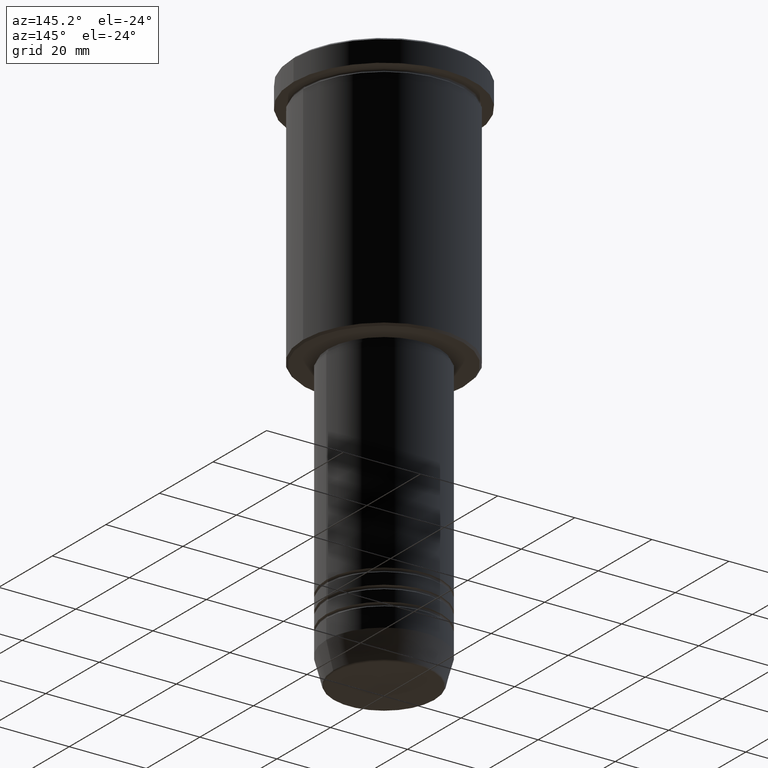
[diagram: clean part render]
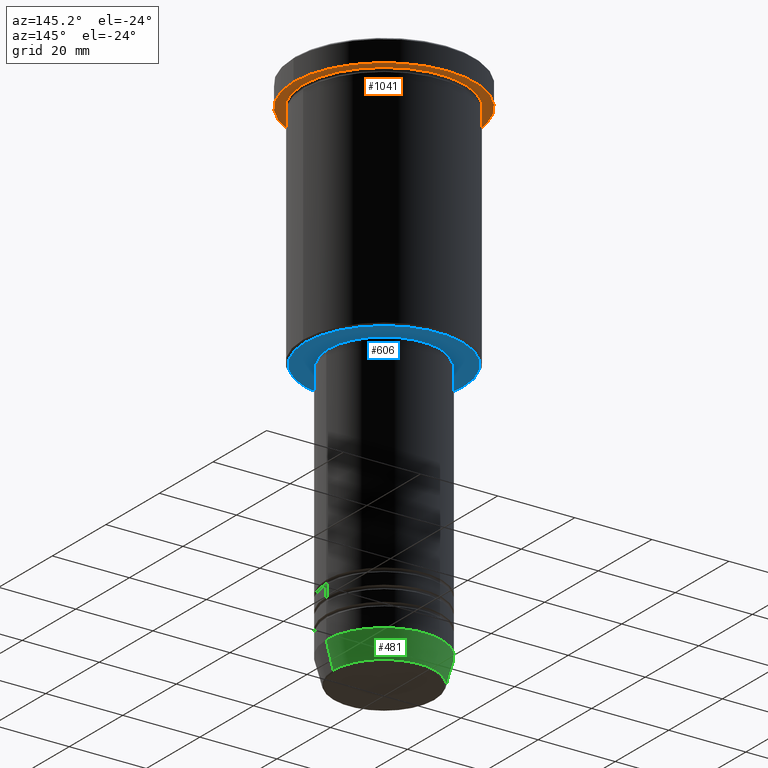
[diagram: same view with three faces highlighted in distinct colors, each labeled with its STEP entity id]
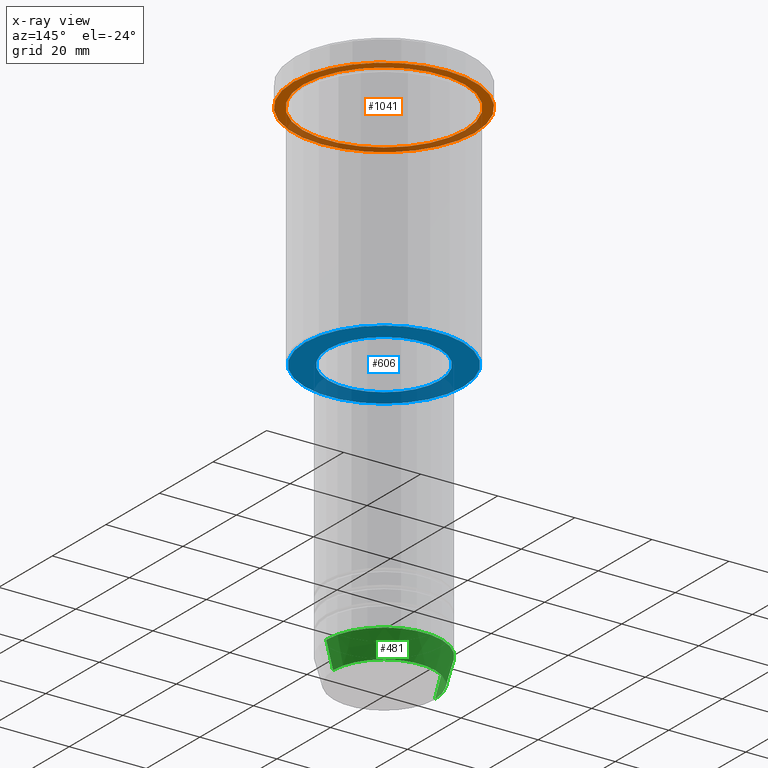
[diagram: x-ray of the same camera — body ghosted, the three highlighted faces saturated]
A machine part, auxiliary view with three faces highlighted in distinct colors.
The next image is the same camera in x-ray (body ghosted, the three faces saturated) — at least one of them is partly hidden behind the body in this view.
Their STEP definitions:

[orange] entity #1041 — the highlighted planar face has unit normal (0, 0, -1).
#20 = AXIS2_PLACEMENT_3D ( 'NONE', #54, #1153, #244 ) ;
#21 = DIRECTION ( 'NONE',  ( -0.000000000000000000, -0.000000000000000000, 1.000000000000000000 ) ) ;
#22 = EDGE_CURVE ( 'NONE', #275, #218, #350, .T. ) ;
#54 = CARTESIAN_POINT ( 'NONE',  ( 0.000000000000000000, 23.50000000000000000, -5.999999999999993783 ) ) ;
#118 = ORIENTED_EDGE ( 'NONE', *, *, #22, .F. ) ;
#142 = FACE_OUTER_BOUND ( 'NONE', #698, .T. ) ;
#170 = CIRCLE ( 'NONE', #803, 21.00000000000000000 ) ;
#215 = DIRECTION ( 'NONE',  ( -1.000000000000000000, 0.000000000000000000, 0.000000000000000000 ) ) ;
#217 = AXIS2_PLACEMENT_3D ( 'NONE', #487, #385, #753 ) ;
#218 = VERTEX_POINT ( 'NONE', #297 ) ;
#244 = DIRECTION ( 'NONE',  ( -1.000000000000000000, 0.000000000000000000, -0.000000000000000000 ) ) ;
#275 = VERTEX_POINT ( 'NONE', #376 ) ;
#283 = EDGE_LOOP ( 'NONE', ( #1005, #1101 ) ) ;
#297 = CARTESIAN_POINT ( 'NONE',  ( 23.50000000000000000, 0.000000000000000000, -5.999999999999993783 ) ) ;
#304 = CARTESIAN_POINT ( 'NONE',  ( 0.000000000000000000, 0.000000000000000000, -5.999999999999993783 ) ) ;
#332 = EDGE_CURVE ( 'NONE', #218, #275, #787, .T. ) ;
#350 = CIRCLE ( 'NONE', #217, 23.50000000000000000 ) ;
#376 = CARTESIAN_POINT ( 'NONE',  ( -23.50000000000000000, 2.877919977996280320E-15, -5.999999999999993783 ) ) ;
#385 = DIRECTION ( 'NONE',  ( -0.000000000000000000, -0.000000000000000000, 1.000000000000000000 ) ) ;
#482 = DIRECTION ( 'NONE',  ( 1.000000000000000000, 0.000000000000000000, 0.000000000000000000 ) ) ;
#484 = AXIS2_PLACEMENT_3D ( 'NONE', #304, #21, #482 ) ;
#487 = CARTESIAN_POINT ( 'NONE',  ( 0.000000000000000000, 0.000000000000000000, -5.999999999999993783 ) ) ;
#489 = CARTESIAN_POINT ( 'NONE',  ( 0.000000000000000000, 0.000000000000000000, -5.999999999999993783 ) ) ;
#492 = VERTEX_POINT ( 'NONE', #850 ) ;
#500 = FACE_BOUND ( 'NONE', #283, .T. ) ;
#535 = EDGE_CURVE ( 'NONE', #492, #963, #670, .T. ) ;
#603 = CARTESIAN_POINT ( 'NONE',  ( -21.00000000000000000, 0.000000000000000000, -5.999999999999992895 ) ) ;
#623 = DIRECTION ( 'NONE',  ( -1.000000000000000000, 0.000000000000000000, 0.000000000000000000 ) ) ;
#628 = ORIENTED_EDGE ( 'NONE', *, *, #332, .F. ) ;
#659 = EDGE_CURVE ( 'NONE', #963, #492, #170, .T. ) ;
#670 = CIRCLE ( 'NONE', #816, 21.00000000000000000 ) ;
#693 = PLANE ( 'NONE',  #20 ) ;
#698 = EDGE_LOOP ( 'NONE', ( #628, #118 ) ) ;
#753 = DIRECTION ( 'NONE',  ( 1.000000000000000000, 0.000000000000000000, 0.000000000000000000 ) ) ;
#760 = DIRECTION ( 'NONE',  ( -0.000000000000000000, -0.000000000000000000, 1.000000000000000000 ) ) ;
#787 = CIRCLE ( 'NONE', #484, 23.50000000000000000 ) ;
#803 = AXIS2_PLACEMENT_3D ( 'NONE', #489, #760, #215 ) ;
#816 = AXIS2_PLACEMENT_3D ( 'NONE', #887, #1159, #623 ) ;
#850 = CARTESIAN_POINT ( 'NONE',  ( 21.00000000000000000, 2.571758278209441661E-15, -5.999999999999992895 ) ) ;
#887 = CARTESIAN_POINT ( 'NONE',  ( 0.000000000000000000, 0.000000000000000000, -5.999999999999993783 ) ) ;
#963 = VERTEX_POINT ( 'NONE', #603 ) ;
#1005 = ORIENTED_EDGE ( 'NONE', *, *, #659, .T. ) ;
#1041 = ADVANCED_FACE ( 'NONE', ( #500, #142 ), #693, .T. ) ;
#1101 = ORIENTED_EDGE ( 'NONE', *, *, #535, .T. ) ;
#1153 = DIRECTION ( 'NONE',  ( 0.000000000000000000, 0.000000000000000000, -1.000000000000000000 ) ) ;
#1159 = DIRECTION ( 'NONE',  ( -0.000000000000000000, -0.000000000000000000, 1.000000000000000000 ) ) ;

[blue] entity #606 — the highlighted planar face has unit normal (0, 0, -1).
#14 = AXIS2_PLACEMENT_3D ( 'NONE', #199, #561, #756 ) ;
#59 = DIRECTION ( 'NONE',  ( 1.000000000000000000, 0.000000000000000000, 0.000000000000000000 ) ) ;
#73 = CARTESIAN_POINT ( 'NONE',  ( -20.50000000000000355, 2.541142108230758269E-15, -66.00000000000000000 ) ) ;
#84 = VERTEX_POINT ( 'NONE', #468 ) ;
#149 = CIRCLE ( 'NONE', #1066, 20.50000000000000355 ) ;
#162 = DIRECTION ( 'NONE',  ( -1.000000000000000000, 0.000000000000000000, -0.000000000000000000 ) ) ;
#189 = EDGE_CURVE ( 'NONE', #572, #781, #264, .T. ) ;
#190 = AXIS2_PLACEMENT_3D ( 'NONE', #238, #951, #414 ) ;
#199 = CARTESIAN_POINT ( 'NONE',  ( 0.000000000000000000, 0.000000000000000000, -66.00000000000000000 ) ) ;
#238 = CARTESIAN_POINT ( 'NONE',  ( 0.000000000000000000, 0.000000000000000000, -66.00000000000000000 ) ) ;
#246 = FACE_BOUND ( 'NONE', #1172, .T. ) ;
#264 = CIRCLE ( 'NONE', #14, 20.50000000000000355 ) ;
#272 = ORIENTED_EDGE ( 'NONE', *, *, #543, .T. ) ;
#390 = CIRCLE ( 'NONE', #556, 14.49999999999999822 ) ;
#414 = DIRECTION ( 'NONE',  ( 1.000000000000000000, 0.000000000000000000, 0.000000000000000000 ) ) ;
#466 = DIRECTION ( 'NONE',  ( 0.000000000000000000, 0.000000000000000000, -1.000000000000000000 ) ) ;
#468 = CARTESIAN_POINT ( 'NONE',  ( -14.49999999999999822, 1.775737858763662015E-15, -66.00000000000000000 ) ) ;
#502 = CIRCLE ( 'NONE', #190, 14.49999999999999822 ) ;
#511 = CARTESIAN_POINT ( 'NONE',  ( 0.000000000000000000, 21.00000000000000000, -66.00000000000000000 ) ) ;
#512 = DIRECTION ( 'NONE',  ( -0.000000000000000000, -0.000000000000000000, 1.000000000000000000 ) ) ;
#543 = EDGE_CURVE ( 'NONE', #781, #572, #149, .T. ) ;
#556 = AXIS2_PLACEMENT_3D ( 'NONE', #673, #512, #59 ) ;
#561 = DIRECTION ( 'NONE',  ( 0.000000000000000000, 0.000000000000000000, -1.000000000000000000 ) ) ;
#572 = VERTEX_POINT ( 'NONE', #73 ) ;
#573 = CARTESIAN_POINT ( 'NONE',  ( 14.49999999999999822, 0.000000000000000000, -66.00000000000000000 ) ) ;
#606 = ADVANCED_FACE ( 'NONE', ( #1102, #246 ), #684, .T. ) ;
#655 = VERTEX_POINT ( 'NONE', #573 ) ;
#661 = ORIENTED_EDGE ( 'NONE', *, *, #676, .T. ) ;
#673 = CARTESIAN_POINT ( 'NONE',  ( 0.000000000000000000, 0.000000000000000000, -66.00000000000000000 ) ) ;
#676 = EDGE_CURVE ( 'NONE', #655, #84, #502, .T. ) ;
#684 = PLANE ( 'NONE',  #971 ) ;
#717 = CARTESIAN_POINT ( 'NONE',  ( 0.000000000000000000, 0.000000000000000000, -66.00000000000000000 ) ) ;
#722 = CARTESIAN_POINT ( 'NONE',  ( 20.50000000000000355, 0.000000000000000000, -66.00000000000000000 ) ) ;
#725 = DIRECTION ( 'NONE',  ( -1.000000000000000000, 0.000000000000000000, 0.000000000000000000 ) ) ;
#731 = EDGE_CURVE ( 'NONE', #84, #655, #390, .T. ) ;
#732 = ORIENTED_EDGE ( 'NONE', *, *, #731, .T. ) ;
#756 = DIRECTION ( 'NONE',  ( -1.000000000000000000, 0.000000000000000000, 0.000000000000000000 ) ) ;
#781 = VERTEX_POINT ( 'NONE', #722 ) ;
#901 = DIRECTION ( 'NONE',  ( 0.000000000000000000, 0.000000000000000000, -1.000000000000000000 ) ) ;
#951 = DIRECTION ( 'NONE',  ( -0.000000000000000000, -0.000000000000000000, 1.000000000000000000 ) ) ;
#971 = AXIS2_PLACEMENT_3D ( 'NONE', #511, #466, #162 ) ;
#1031 = ORIENTED_EDGE ( 'NONE', *, *, #189, .T. ) ;
#1066 = AXIS2_PLACEMENT_3D ( 'NONE', #717, #901, #725 ) ;
#1102 = FACE_OUTER_BOUND ( 'NONE', #1108, .T. ) ;
#1108 = EDGE_LOOP ( 'NONE', ( #272, #1031 ) ) ;
#1172 = EDGE_LOOP ( 'NONE', ( #661, #732 ) ) ;

[green] entity #481 — the highlighted conical surface has half-angle 15 deg.
#25 = VECTOR ( 'NONE', #558, 1000.000000000000000 ) ;
#82 = CARTESIAN_POINT ( 'NONE',  ( 0.000000000000000000, 0.000000000000000000, -134.0000000000000000 ) ) ;
#83 = CARTESIAN_POINT ( 'NONE',  ( -15.00000000000000000, 1.836970198721029589E-15, -134.0000000000000000 ) ) ;
#86 = EDGE_CURVE ( 'NONE', #942, #280, #1003, .T. ) ;
#148 = AXIS2_PLACEMENT_3D ( 'NONE', #769, #1116, #293 ) ;
#154 = EDGE_CURVE ( 'NONE', #504, #1145, #377, .T. ) ;
#225 = EDGE_CURVE ( 'NONE', #504, #942, #724, .T. ) ;
#233 = AXIS2_PLACEMENT_3D ( 'NONE', #82, #262, #453 ) ;
#262 = DIRECTION ( 'NONE',  ( -0.000000000000000000, -0.000000000000000000, 1.000000000000000000 ) ) ;
#270 = CARTESIAN_POINT ( 'NONE',  ( 15.00000000000000000, 0.000000000000000000, -134.0000000000000000 ) ) ;
#280 = VERTEX_POINT ( 'NONE', #422 ) ;
#293 = DIRECTION ( 'NONE',  ( 1.000000000000000000, 0.000000000000000000, 0.000000000000000000 ) ) ;
#324 = FACE_OUTER_BOUND ( 'NONE', #1120, .T. ) ;
#377 = LINE ( 'NONE', #710, #1129 ) ;
#392 = ORIENTED_EDGE ( 'NONE', *, *, #225, .T. ) ;
#413 = DIRECTION ( 'NONE',  ( -0.000000000000000000, -0.000000000000000000, 1.000000000000000000 ) ) ;
#422 = CARTESIAN_POINT ( 'NONE',  ( -15.00000000000000000, 1.836970198721029589E-15, -134.0000000000000000 ) ) ;
#453 = DIRECTION ( 'NONE',  ( 1.000000000000000000, 0.000000000000000000, 0.000000000000000000 ) ) ;
#476 = ORIENTED_EDGE ( 'NONE', *, *, #154, .F. ) ;
#481 = ADVANCED_FACE ( 'NONE', ( #324 ), #851, .T. ) ;
#504 = VERTEX_POINT ( 'NONE', #677 ) ;
#558 = DIRECTION ( 'NONE',  ( -0.2588190451025213501, 3.169619151431772337E-17, 0.9659258262890680902 ) ) ;
#608 = CARTESIAN_POINT ( 'NONE',  ( 0.000000000000000000, 0.000000000000000000, -134.0000000000000000 ) ) ;
#609 = CARTESIAN_POINT ( 'NONE',  ( -13.22365507213719660, 1.728200442216588780E-15, -140.6294095225512706 ) ) ;
#677 = CARTESIAN_POINT ( 'NONE',  ( 13.22365507213719482, 0.000000000000000000, -140.6294095225512706 ) ) ;
#710 = CARTESIAN_POINT ( 'NONE',  ( 15.00000000000000000, 0.000000000000000000, -134.0000000000000000 ) ) ;
#724 = CIRCLE ( 'NONE', #148, 13.22365507213719482 ) ;
#769 = CARTESIAN_POINT ( 'NONE',  ( 0.000000000000000000, 0.000000000000000000, -140.6294095225512706 ) ) ;
#851 = CONICAL_SURFACE ( 'NONE', #1004, 15.00000000000000000, 0.2617993877991500740 ) ;
#916 = ORIENTED_EDGE ( 'NONE', *, *, #86, .T. ) ;
#934 = CIRCLE ( 'NONE', #233, 15.00000000000000000 ) ;
#942 = VERTEX_POINT ( 'NONE', #609 ) ;
#947 = ORIENTED_EDGE ( 'NONE', *, *, #1096, .F. ) ;
#1003 = LINE ( 'NONE', #83, #25 ) ;
#1004 = AXIS2_PLACEMENT_3D ( 'NONE', #608, #413, #1137 ) ;
#1096 = EDGE_CURVE ( 'NONE', #1145, #280, #934, .T. ) ;
#1100 = DIRECTION ( 'NONE',  ( 0.2588190451025213501, 0.000000000000000000, 0.9659258262890680902 ) ) ;
#1116 = DIRECTION ( 'NONE',  ( -0.000000000000000000, -0.000000000000000000, 1.000000000000000000 ) ) ;
#1120 = EDGE_LOOP ( 'NONE', ( #392, #916, #947, #476 ) ) ;
#1129 = VECTOR ( 'NONE', #1100, 1000.000000000000000 ) ;
#1137 = DIRECTION ( 'NONE',  ( 1.000000000000000000, 0.000000000000000000, 0.000000000000000000 ) ) ;
#1145 = VERTEX_POINT ( 'NONE', #270 ) ;